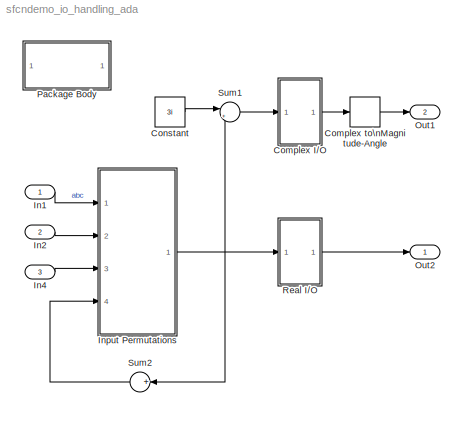
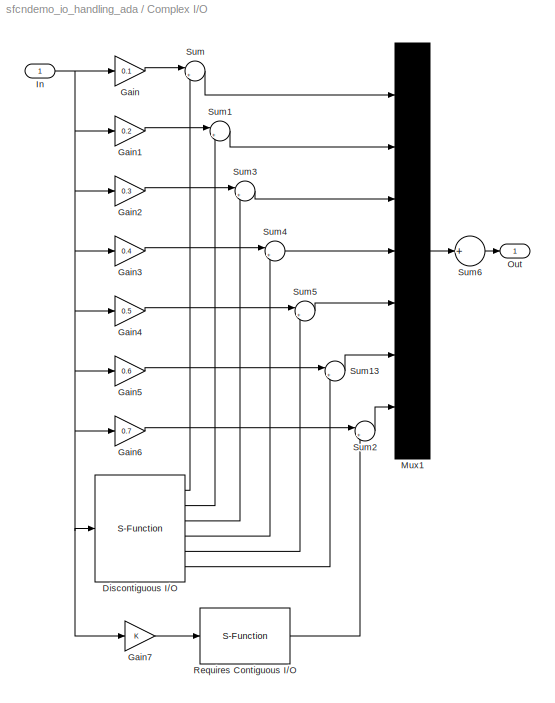
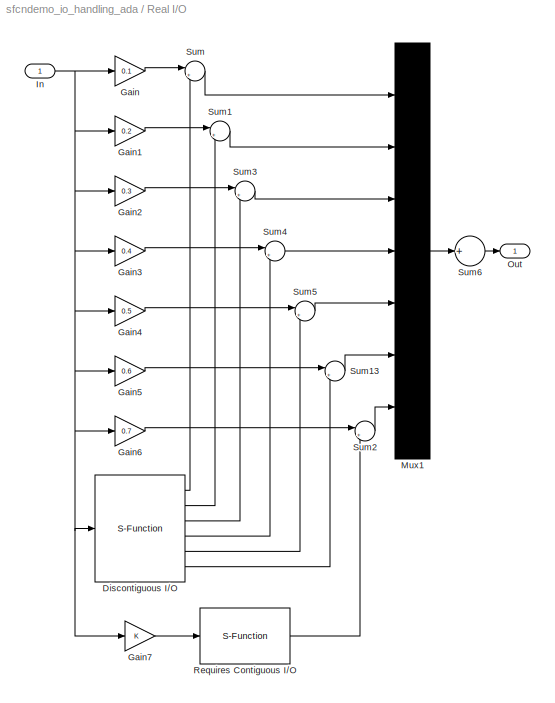
MODEL sfcndemo_io_handling_ada
KIND model
CONFIG PreLoadFcn = t=0;u=[1 2 3 4 5 0 0 0 0 0 0 0 0 0 0];
BLOCK [SubSystem] Complex I//O
  MinAlgLoopOccurrences = off
  Ports = [1, 1]
  PropExecContextAcrossSSBoundary = on
  RTWSystemCode = Auto
  TreatAsAtomicUnit = off
BLOCK [S-Function] Complex I//O/Discontiguous I//O
  FunctionName = sfun_io_handling1
  Ports = [1, 6]
BLOCK [Gain] Complex I//O/Gain
  Gain = 0.1
BLOCK [Gain] Complex I//O/Gain1
  Gain = 0.2
BLOCK [Gain] Complex I//O/Gain2
  Gain = 0.3
BLOCK [Gain] Complex I//O/Gain3
  Gain = 0.4
BLOCK [Gain] Complex I//O/Gain4
  Gain = 0.5
BLOCK [Gain] Complex I//O/Gain5
  Gain = 0.6
BLOCK [Gain] Complex I//O/Gain6
  Gain = 0.7
BLOCK [Gain] Complex I//O/Gain7
BLOCK [Inport] Complex I//O/In
  IconDisplay = Port number
  LatchInput = off
  Port = 1
BLOCK [Mux] Complex I//O/Mux1
  DisplayOption = bar
  Inputs = 7
  Ports = [7, 1]
BLOCK [Outport] Complex I//O/Out
  IconDisplay = Port number
BLOCK [S-Function] Complex I//O/Requires Contiguous I//O
  FunctionName = sfun_io_handling2
  Ports = [1, 1]
BLOCK [Sum] Complex I//O/Sum
  IconShape = round
  Inputs = |+-
  Ports = [2, 1]
BLOCK [Sum] Complex I//O/Sum1
  IconShape = round
  Inputs = |+-
  Ports = [2, 1]
BLOCK [Sum] Complex I//O/Sum13
  IconShape = round
  Inputs = |+-
  Ports = [2, 1]
BLOCK [Sum] Complex I//O/Sum2
  IconShape = round
  Inputs = |+-
  Ports = [2, 1]
BLOCK [Sum] Complex I//O/Sum3
  IconShape = round
  Inputs = |+-
  Ports = [2, 1]
BLOCK [Sum] Complex I//O/Sum4
  IconShape = round
  Inputs = |+-
  Ports = [2, 1]
BLOCK [Sum] Complex I//O/Sum5
  IconShape = round
  Inputs = |+-
  Ports = [2, 1]
BLOCK [Sum] Complex I//O/Sum6
  IconShape = round
  Inputs = +
  Ports = [1, 1]
BLOCK [ComplexToMagnitudeAngle] Complex to\nMagnitude-Angle
  Output = Magnitude
  Ports = [1, 1]
BLOCK [Constant] Constant
  Value = 3i
BLOCK [Inport] In1
  IconDisplay = Port number
  LatchInput = off
  Port = 1
  PortDimensions = 5
BLOCK [Inport] In2
  IconDisplay = Port number
  LatchInput = off
  Port = 2
  PortDimensions = 5
BLOCK [Inport] In4
  IconDisplay = Port number
  LatchInput = off
  Port = 3
  PortDimensions = 5
  SignalType = complex
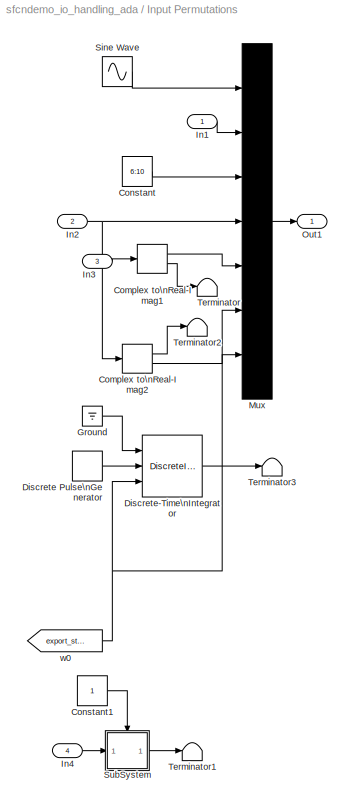
BLOCK [SubSystem] Input Permutations
  MinAlgLoopOccurrences = off
  Ports = [4, 1]
  PropExecContextAcrossSSBoundary = on
  RTWSystemCode = Auto
  TreatAsAtomicUnit = off
BLOCK [ComplexToRealImag] Input Permutations/Complex to\nReal-Imag1
  Output = Real and imag
  Ports = [1, 2]
BLOCK [ComplexToRealImag] Input Permutations/Complex to\nReal-Imag2
  Output = Real and imag
  Ports = [1, 2]
BLOCK [Constant] Input Permutations/Constant
  Value = 6:10
BLOCK [Constant] Input Permutations/Constant1
BLOCK [DiscretePulseGenerator] Input Permutations/Discrete Pulse\nGenerator
  Ports = [0, 1]
BLOCK [DiscreteIntegrator] Input Permutations/Discrete-Time\nIntegrator
  ExternalReset = either
  ICPrevOutput = DiscIntNeverNeededParam
  ICPrevScaledInput = DiscIntNeverNeededParam
  InitialCondition = -5:-1
  InitialConditionSource = external
  IntegratorMethod = Integration: Forward Euler
  Ports = [3, 1]
BLOCK [Ground] Input Permutations/Ground
BLOCK [Inport] Input Permutations/In1
  IconDisplay = Port number
  LatchInput = off
  Port = 1
BLOCK [Inport] Input Permutations/In2
  IconDisplay = Port number
  LatchInput = off
  Port = 2
BLOCK [Inport] Input Permutations/In3
  IconDisplay = Port number
  LatchInput = off
  Port = 3
BLOCK [Inport] Input Permutations/In4
  IconDisplay = Port number
  LatchInput = off
  Port = 4
BLOCK [Mux] Input Permutations/Mux
  DisplayOption = bar
  Inputs = 7
  Ports = [7, 1]
BLOCK [Outport] Input Permutations/Out1
  IconDisplay = Port number
BLOCK [Sin] Input Permutations/Sine Wave
  Amplitude = 1:5
  Ports = [0, 1]
  SampleTime = 1
  SineType = Time based
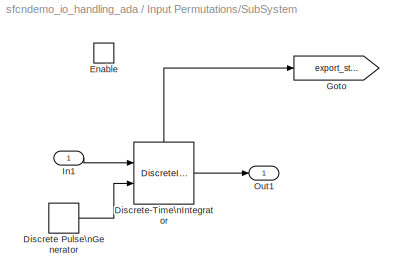
BLOCK [SubSystem] Input Permutations/SubSystem
  MinAlgLoopOccurrences = off
  Ports = [1, 1, 1]
  PropExecContextAcrossSSBoundary = on
  RTWSystemCode = Auto
  TreatAsAtomicUnit = on
BLOCK [DiscretePulseGenerator] Input Permutations/SubSystem/Discrete Pulse\nGenerator
  Ports = [0, 1]
BLOCK [DiscreteIntegrator] Input Permutations/SubSystem/Discrete-Time\nIntegrator
  ExternalReset = either
  ICPrevOutput = DiscIntNeverNeededParam
  ICPrevScaledInput = DiscIntNeverNeededParam
  InitialCondition = -5:-1
  InitialConditionSource = internal
  IntegratorMethod = Integration: Forward Euler
  Ports = [2, 1, 0, 0, 1]
  ShowStatePort = on
BLOCK [EnablePort] Input Permutations/SubSystem/Enable
  Ports = []
BLOCK [Goto] Input Permutations/SubSystem/Goto
  DialogController = Simulink.DDGSource
  GotoTag = export_state
  TagVisibility = global
BLOCK [Inport] Input Permutations/SubSystem/In1
  IconDisplay = Port number
  LatchInput = off
  Port = 1
BLOCK [Outport] Input Permutations/SubSystem/Out1
  IconDisplay = Port number
BLOCK [Terminator] Input Permutations/Terminator
BLOCK [Terminator] Input Permutations/Terminator1
BLOCK [Terminator] Input Permutations/Terminator2
BLOCK [Terminator] Input Permutations/Terminator3
BLOCK [From] Input Permutations/w0
  DialogController = Simulink.DDGSource
  GotoTag = export_state
BLOCK [Outport] Out1
  IconDisplay = Port number
  Port = 2
BLOCK [Outport] Out2
  IconDisplay = Port number
BLOCK [SubSystem] Package Body
  CopyFcn = cccopyfcn(gcb)
  MaskDescription = Add code to model .adb file
  MaskDisplay = disp('Package\\nBody');
  MaskHelp = This block contains text fields to insert custom user code at the package body level.  You can add with dependencies, declarations, and elaboration code to the package body (models.adb file).
  MaskIconFrame = on
  MaskIconOpaque = on
  MaskIconRotate = none
  MaskIconUnits = autoscale
  MaskType = Package Body
  MinAlgLoopOccurrences = off
  OpenFcn = accopenfcn('Package Body')
  Ports = []
  PropExecContextAcrossSSBoundary = on
  RTWSystemCode = Auto
  TreatAsAtomicUnit = off
BLOCK [SubSystem] Real I//O
  MinAlgLoopOccurrences = off
  Ports = [1, 1]
  PropExecContextAcrossSSBoundary = on
  RTWSystemCode = Auto
  TreatAsAtomicUnit = off
BLOCK [S-Function] Real I//O/Discontiguous I//O
  FunctionName = sfun_io_handling1
  Ports = [1, 6]
BLOCK [Gain] Real I//O/Gain
  Gain = 0.1
BLOCK [Gain] Real I//O/Gain1
  Gain = 0.2
BLOCK [Gain] Real I//O/Gain2
  Gain = 0.3
BLOCK [Gain] Real I//O/Gain3
  Gain = 0.4
BLOCK [Gain] Real I//O/Gain4
  Gain = 0.5
BLOCK [Gain] Real I//O/Gain5
  Gain = 0.6
BLOCK [Gain] Real I//O/Gain6
  Gain = 0.7
BLOCK [Gain] Real I//O/Gain7
BLOCK [Inport] Real I//O/In
  IconDisplay = Port number
  LatchInput = off
  Port = 1
BLOCK [Mux] Real I//O/Mux1
  DisplayOption = bar
  Inputs = 7
  Ports = [7, 1]
BLOCK [Outport] Real I//O/Out
  IconDisplay = Port number
BLOCK [S-Function] Real I//O/Requires Contiguous I//O
  FunctionName = sfun_io_handling2
  Ports = [1, 1]
BLOCK [Sum] Real I//O/Sum
  IconShape = round
  Inputs = |+-
  Ports = [2, 1]
BLOCK [Sum] Real I//O/Sum1
  IconShape = round
  Inputs = |+-
  Ports = [2, 1]
BLOCK [Sum] Real I//O/Sum13
  IconShape = round
  Inputs = |+-
  Ports = [2, 1]
BLOCK [Sum] Real I//O/Sum2
  IconShape = round
  Inputs = |+-
  Ports = [2, 1]
BLOCK [Sum] Real I//O/Sum3
  IconShape = round
  Inputs = |+-
  Ports = [2, 1]
BLOCK [Sum] Real I//O/Sum4
  IconShape = round
  Inputs = |+-
  Ports = [2, 1]
BLOCK [Sum] Real I//O/Sum5
  IconShape = round
  Inputs = |+-
  Ports = [2, 1]
BLOCK [Sum] Real I//O/Sum6
  IconShape = round
  Inputs = +
  Ports = [1, 1]
BLOCK [Sum] Sum1
  IconShape = round
  Inputs = |+-
  Ports = [2, 1]
BLOCK [Sum] Sum2
  IconShape = round
  Inputs = +
  Ports = [1, 1]
LINE Complex I//O/Discontiguous I//O:1 -> Complex I//O/Sum:2
LINE Complex I//O/Discontiguous I//O:2 -> Complex I//O/Sum1:2
LINE Complex I//O/Discontiguous I//O:3 -> Complex I//O/Sum3:2
LINE Complex I//O/Discontiguous I//O:4 -> Complex I//O/Sum4:2
LINE Complex I//O/Discontiguous I//O:5 -> Complex I//O/Sum5:2
LINE Complex I//O/Discontiguous I//O:6 -> Complex I//O/Sum13:2
LINE Complex I//O/Gain1:1 -> Complex I//O/Sum1:1
LINE Complex I//O/Gain2:1 -> Complex I//O/Sum3:1
LINE Complex I//O/Gain3:1 -> Complex I//O/Sum4:1
LINE Complex I//O/Gain4:1 -> Complex I//O/Sum5:1
LINE Complex I//O/Gain5:1 -> Complex I//O/Sum13:1
LINE Complex I//O/Gain6:1 -> Complex I//O/Sum2:1
LINE Complex I//O/Gain7:1 -> Complex I//O/Requires Contiguous I//O:1
LINE Complex I//O/Gain:1 -> Complex I//O/Sum:1
NET Complex I//O/In:1 -> Complex I//O/Discontiguous I//O:1, Complex I//O/Gain1:1, Complex I//O/Gain2:1, Complex I//O/Gain3:1, Complex I//O/Gain4:1, Complex I//O/Gain5:1, Complex I//O/Gain6:1, Complex I//O/Gain7:1, Complex I//O/Gain:1
LINE Complex I//O/Mux1:1 -> Complex I//O/Sum6:1
LINE Complex I//O/Requires Contiguous I//O:1 -> Complex I//O/Sum2:2
LINE Complex I//O/Sum13:1 -> Complex I//O/Mux1:6
LINE Complex I//O/Sum1:1 -> Complex I//O/Mux1:2
LINE Complex I//O/Sum2:1 -> Complex I//O/Mux1:7
LINE Complex I//O/Sum3:1 -> Complex I//O/Mux1:3
LINE Complex I//O/Sum4:1 -> Complex I//O/Mux1:4
LINE Complex I//O/Sum5:1 -> Complex I//O/Mux1:5
LINE Complex I//O/Sum6:1 -> Complex I//O/Out:1
LINE Complex I//O/Sum:1 -> Complex I//O/Mux1:1
LINE Complex I//O:1 -> Complex to\nMagnitude-Angle:1
LINE Complex to\nMagnitude-Angle:1 -> Out1:1
LINE Constant:1 -> Sum1:1
LINE In1:1 -> Input Permutations:1
LINE In2:1 -> Input Permutations:2
LINE In4:1 -> Input Permutations:3
LINE Input Permutations/Complex to\nReal-Imag1:1 -> Input Permutations/Mux:5
LINE Input Permutations/Complex to\nReal-Imag1:2 -> Input Permutations/Terminator:1
LINE Input Permutations/Complex to\nReal-Imag2:1 -> Input Permutations/Terminator2:1
LINE Input Permutations/Complex to\nReal-Imag2:2 -> Input Permutations/Mux:6
LINE Input Permutations/Constant1:1 -> Input Permutations/SubSystem:enable
LINE Input Permutations/Constant:1 -> Input Permutations/Mux:3
LINE Input Permutations/Discrete Pulse\nGenerator:1 -> Input Permutations/Discrete-Time\nIntegrator:2
LINE Input Permutations/Discrete-Time\nIntegrator:1 -> Input Permutations/Terminator3:1
LINE Input Permutations/Ground:1 -> Input Permutations/Discrete-Time\nIntegrator:1
LINE Input Permutations/In1:1 -> Input Permutations/Mux:2
NET Input Permutations/In2:1 -> Input Permutations/Complex to\nReal-Imag2:1, Input Permutations/Mux:4
LINE Input Permutations/In3:1 -> Input Permutations/Complex to\nReal-Imag1:1
LINE Input Permutations/In4:1 -> Input Permutations/SubSystem:1
LINE Input Permutations/Mux:1 -> Input Permutations/Out1:1
LINE Input Permutations/Sine Wave:1 -> Input Permutations/Mux:1
LINE Input Permutations/SubSystem/Discrete Pulse\nGenerator:1 -> Input Permutations/SubSystem/Discrete-Time\nIntegrator:2
LINE Input Permutations/SubSystem/Discrete-Time\nIntegrator:1 -> Input Permutations/SubSystem/Out1:1
LINE Input Permutations/SubSystem/Discrete-Time\nIntegrator:state -> Input Permutations/SubSystem/Goto:1
LINE Input Permutations/SubSystem/In1:1 -> Input Permutations/SubSystem/Discrete-Time\nIntegrator:1
LINE Input Permutations/SubSystem:1 -> Input Permutations/Terminator1:1
NET Input Permutations/w0:1 -> Input Permutations/Discrete-Time\nIntegrator:3, Input Permutations/Mux:7
NET Input Permutations:1 -> Real I//O:1, Sum1:2, Sum2:1
LINE Real I//O/Discontiguous I//O:1 -> Real I//O/Sum:2
LINE Real I//O/Discontiguous I//O:2 -> Real I//O/Sum1:2
LINE Real I//O/Discontiguous I//O:3 -> Real I//O/Sum3:2
LINE Real I//O/Discontiguous I//O:4 -> Real I//O/Sum4:2
LINE Real I//O/Discontiguous I//O:5 -> Real I//O/Sum5:2
LINE Real I//O/Discontiguous I//O:6 -> Real I//O/Sum13:2
LINE Real I//O/Gain1:1 -> Real I//O/Sum1:1
LINE Real I//O/Gain2:1 -> Real I//O/Sum3:1
LINE Real I//O/Gain3:1 -> Real I//O/Sum4:1
LINE Real I//O/Gain4:1 -> Real I//O/Sum5:1
LINE Real I//O/Gain5:1 -> Real I//O/Sum13:1
LINE Real I//O/Gain6:1 -> Real I//O/Sum2:1
LINE Real I//O/Gain7:1 -> Real I//O/Requires Contiguous I//O:1
LINE Real I//O/Gain:1 -> Real I//O/Sum:1
NET Real I//O/In:1 -> Real I//O/Discontiguous I//O:1, Real I//O/Gain1:1, Real I//O/Gain2:1, Real I//O/Gain3:1, Real I//O/Gain4:1, Real I//O/Gain5:1, Real I//O/Gain6:1, Real I//O/Gain7:1, Real I//O/Gain:1
LINE Real I//O/Mux1:1 -> Real I//O/Sum6:1
LINE Real I//O/Requires Contiguous I//O:1 -> Real I//O/Sum2:2
LINE Real I//O/Sum13:1 -> Real I//O/Mux1:6
LINE Real I//O/Sum1:1 -> Real I//O/Mux1:2
LINE Real I//O/Sum2:1 -> Real I//O/Mux1:7
LINE Real I//O/Sum3:1 -> Real I//O/Mux1:3
LINE Real I//O/Sum4:1 -> Real I//O/Mux1:4
LINE Real I//O/Sum5:1 -> Real I//O/Mux1:5
LINE Real I//O/Sum6:1 -> Real I//O/Out:1
LINE Real I//O/Sum:1 -> Real I//O/Mux1:1
LINE Real I//O:1 -> Out2:1
LINE Sum1:1 -> Complex I//O:1
LINE Sum2:1 -> Input Permutations:4
note: NET lines group one-source signal fan-out (src -> all destinations, sorted); 1:1 wires keep LINE
